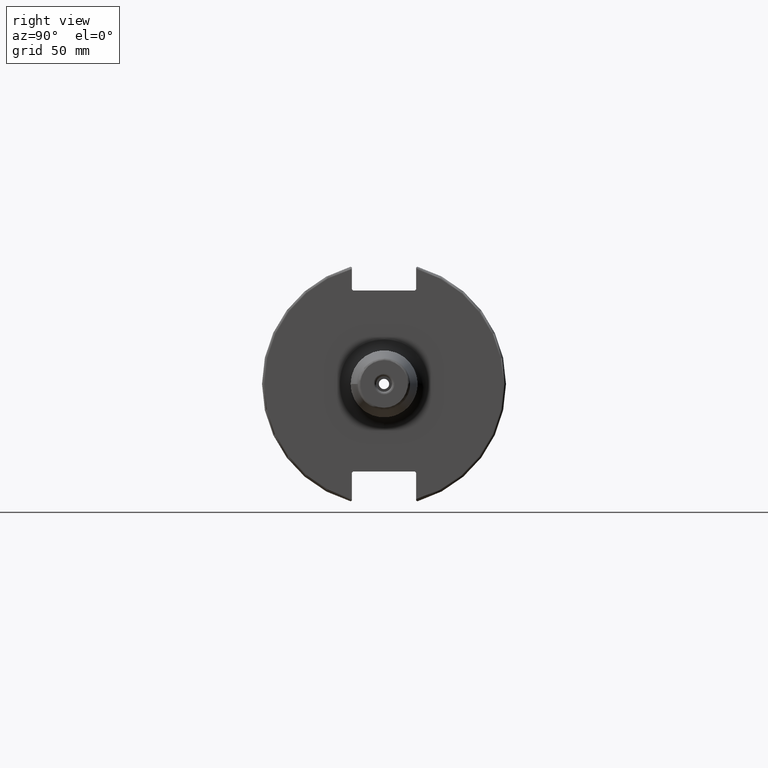
[diagram: clean part render]
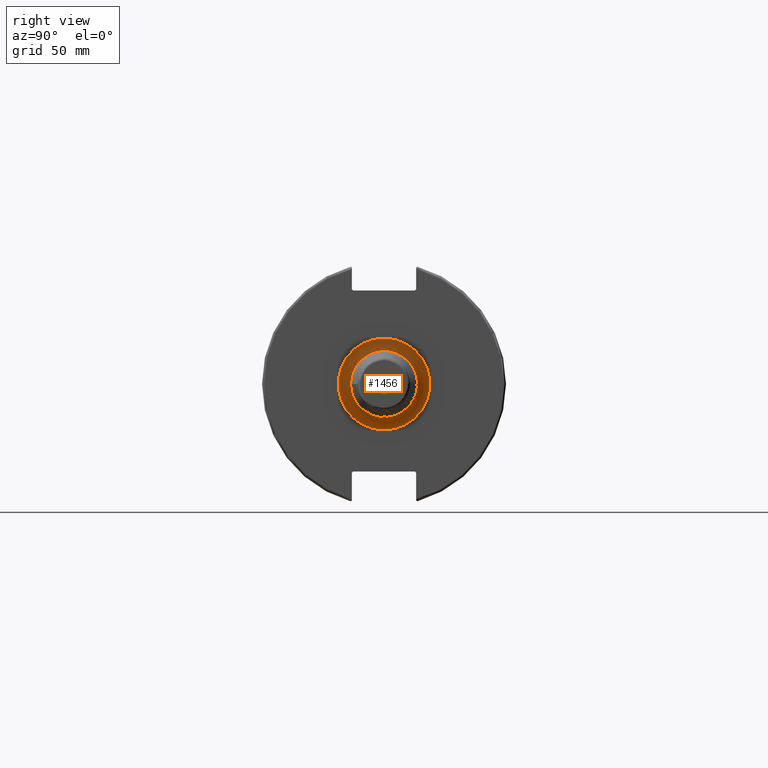
[diagram: same view with one face highlighted and labeled with its STEP entity id]
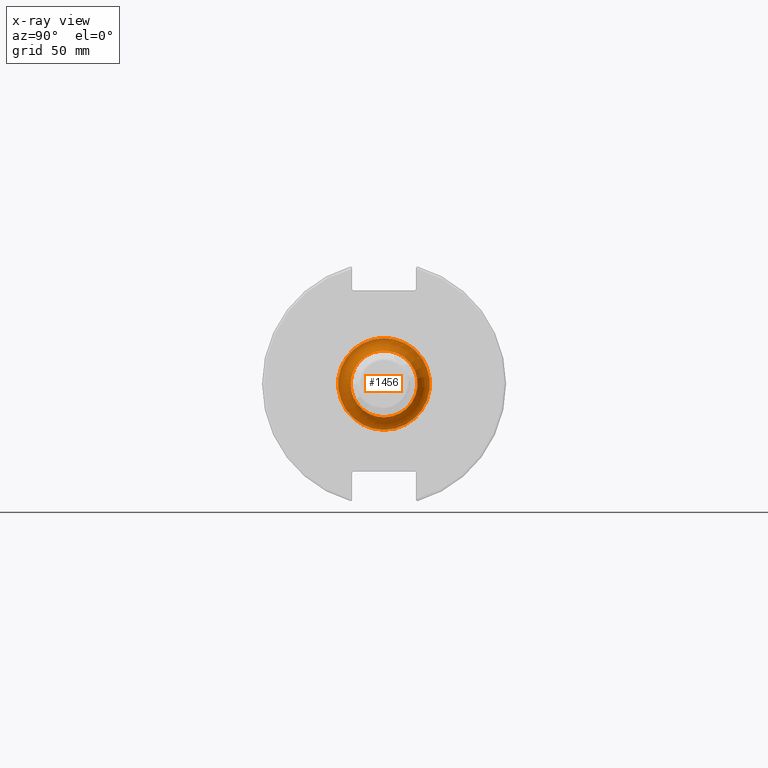
[diagram: x-ray of the same camera — body ghosted, the highlighted face saturated]
A machine part, right view. The second image highlights one B-rep face of the part: STEP entity #1456.
The next image is the same camera in x-ray: the body ghosted, the highlighted face saturated — about 0% of this face is hidden behind the body in this view.
In plain terms, the highlighted toroidal blend (fillet) surface has major radius 18.5 mm and minor (blend) radius 5 mm.
Its self-contained STEP definition (entity closure, byte-faithful):
#357=FACE_OUTER_BOUND('',#444,.T.);
#444=EDGE_LOOP('',(#1016,#1017,#1018,#1019,#1020));
#554=CIRCLE('',#1576,13.5);
#555=CIRCLE('',#1577,5.);
#556=CIRCLE('',#1578,18.5);
#557=CIRCLE('',#1579,13.5);
#628=VERTEX_POINT('',#2173);
#629=VERTEX_POINT('',#2174);
#630=VERTEX_POINT('',#2176);
#782=EDGE_CURVE('',#628,#629,#554,.T.);
#783=EDGE_CURVE('',#629,#630,#555,.T.);
#784=EDGE_CURVE('',#630,#630,#556,.T.);
#785=EDGE_CURVE('',#629,#628,#557,.T.);
#1016=ORIENTED_EDGE('',*,*,#782,.T.);
#1017=ORIENTED_EDGE('',*,*,#783,.T.);
#1018=ORIENTED_EDGE('',*,*,#784,.T.);
#1019=ORIENTED_EDGE('',*,*,#783,.F.);
#1020=ORIENTED_EDGE('',*,*,#785,.T.);
#1444=TOROIDAL_SURFACE('',#1575,18.5,5.);
#1456=ADVANCED_FACE('',(#357),#1444,.F.);
#1575=AXIS2_PLACEMENT_3D('',#2172,#1758,#1759);
#1576=AXIS2_PLACEMENT_3D('',#2175,#1760,#1761);
#1577=AXIS2_PLACEMENT_3D('',#2177,#1762,#1763);
#1578=AXIS2_PLACEMENT_3D('',#2178,#1764,#1765);
#1579=AXIS2_PLACEMENT_3D('',#2179,#1766,#1767);
#1758=DIRECTION('center_axis',(-1.,0.,0.));
#1759=DIRECTION('ref_axis',(0.,0.,1.));
#1760=DIRECTION('center_axis',(-1.,0.,0.));
#1761=DIRECTION('ref_axis',(0.,-1.,-1.22464679914735E-16));
#1762=DIRECTION('center_axis',(0.,-1.,1.22464679914735E-16));
#1763=DIRECTION('ref_axis',(0.,-1.22464679914735E-16,-1.));
#1764=DIRECTION('center_axis',(1.,0.,0.));
#1765=DIRECTION('ref_axis',(0.,-1.,-1.22464679914735E-16));
#1766=DIRECTION('center_axis',(-1.,0.,0.));
#1767=DIRECTION('ref_axis',(0.,-1.,-1.22464679914735E-16));
#2172=CARTESIAN_POINT('Origin',(24.05,0.,0.));
#2173=CARTESIAN_POINT('',(24.05,-13.5,-1.65327317884893E-15));
#2174=CARTESIAN_POINT('',(24.05,-1.65327317884893E-15,-13.5));
#2175=CARTESIAN_POINT('Origin',(24.05,0.,0.));
#2176=CARTESIAN_POINT('',(19.05,-2.2655965784226E-15,-18.5));
#2177=CARTESIAN_POINT('Origin',(24.05,-2.2655965784226E-15,-18.5));
#2178=CARTESIAN_POINT('Origin',(19.05,0.,0.));
#2179=CARTESIAN_POINT('Origin',(24.05,0.,0.));